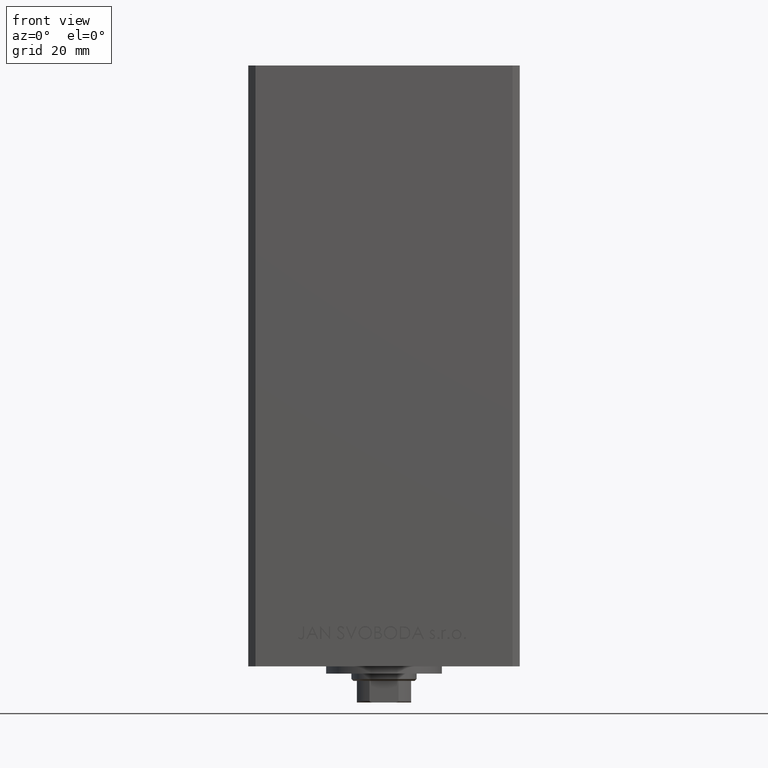
[diagram: clean part render]
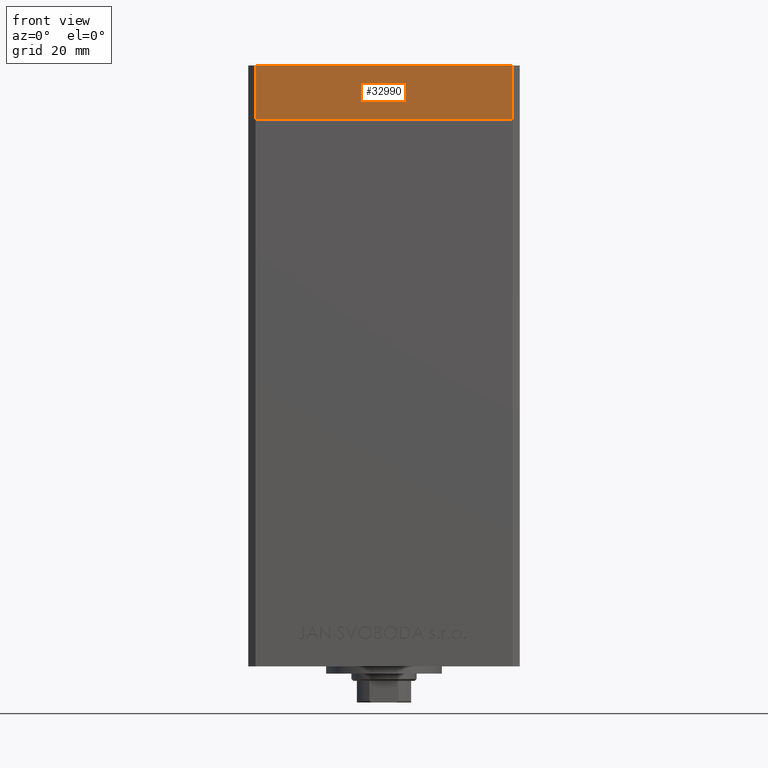
[diagram: same view with one face highlighted and labeled with its STEP entity id]
A machine part, front view. The second image highlights one B-rep face of the part: STEP entity #32990.
In plain terms, the highlighted planar face has unit normal (0, -1, 0).
Its self-contained STEP definition (entity closure, byte-faithful):
#99 = LINE ( 'NONE', #3108, #33473 ) ;
#1776 = LINE ( 'NONE', #20450, #15495 ) ;
#3108 = CARTESIAN_POINT ( 'NONE',  ( -35.49999999999998579, -32.50000000000001421, -15.00000000000000000 ) ) ;
#4098 = CARTESIAN_POINT ( 'NONE',  ( 35.50000000000000711, -32.50000000000000711, -15.00000000000000000 ) ) ;
#4119 = EDGE_CURVE ( 'NONE', #36311, #47659, #99, .T. ) ;
#4718 = CARTESIAN_POINT ( 'NONE',  ( -35.49999999999998579, -32.50000000000001421, -15.00000000000000000 ) ) ;
#5767 = DIRECTION ( 'NONE',  ( 1.000000000000000000, 9.773090005503140331E-17, 0.000000000000000000 ) ) ;
#6721 = EDGE_LOOP ( 'NONE', ( #15475, #18284, #21536, #48891 ) ) ;
#8953 = CARTESIAN_POINT ( 'NONE',  ( 35.50000000000000711, -32.50000000000000711, 0.000000000000000000 ) ) ;
#14755 = DIRECTION ( 'NONE',  ( 1.000000000000000000, 9.773090005503140331E-17, 0.000000000000000000 ) ) ;
#14989 = LINE ( 'NONE', #41408, #29487 ) ;
#15286 = DIRECTION ( 'NONE',  ( 0.000000000000000000, 0.000000000000000000, 1.000000000000000000 ) ) ;
#15475 = ORIENTED_EDGE ( 'NONE', *, *, #17576, .F. ) ;
#15495 = VECTOR ( 'NONE', #5767, 1000.000000000000000 ) ;
#17576 = EDGE_CURVE ( 'NONE', #47659, #34784, #14989, .T. ) ;
#18009 = CARTESIAN_POINT ( 'NONE',  ( 35.50000000000000711, -32.50000000000000711, -15.00000000000000000 ) ) ;
#18284 = ORIENTED_EDGE ( 'NONE', *, *, #4119, .F. ) ;
#18398 = VERTEX_POINT ( 'NONE', #18009 ) ;
#19183 = VECTOR ( 'NONE', #30738, 1000.000000000000000 ) ;
#19894 = DIRECTION ( 'NONE',  ( 9.773090005503140331E-17, -1.000000000000000000, 0.000000000000000000 ) ) ;
#20450 = CARTESIAN_POINT ( 'NONE',  ( -35.49999999999998579, -32.50000000000001421, -15.00000000000000000 ) ) ;
#21536 = ORIENTED_EDGE ( 'NONE', *, *, #32671, .T. ) ;
#23391 = DIRECTION ( 'NONE',  ( 1.000000000000000000, 9.773090005503140331E-17, 0.000000000000000000 ) ) ;
#25850 = AXIS2_PLACEMENT_3D ( 'NONE', #4718, #19894, #23391 ) ;
#27809 = CARTESIAN_POINT ( 'NONE',  ( -35.49999999999998579, -32.50000000000001421, 0.000000000000000000 ) ) ;
#29487 = VECTOR ( 'NONE', #14755, 1000.000000000000000 ) ;
#30381 = PLANE ( 'NONE',  #25850 ) ;
#30738 = DIRECTION ( 'NONE',  ( 0.000000000000000000, 0.000000000000000000, 1.000000000000000000 ) ) ;
#31115 = FACE_OUTER_BOUND ( 'NONE', #6721, .T. ) ;
#32076 = CARTESIAN_POINT ( 'NONE',  ( -35.49999999999998579, -32.50000000000001421, -15.00000000000000000 ) ) ;
#32671 = EDGE_CURVE ( 'NONE', #36311, #18398, #1776, .T. ) ;
#32990 = ADVANCED_FACE ( 'NONE', ( #31115 ), #30381, .T. ) ;
#33473 = VECTOR ( 'NONE', #15286, 1000.000000000000000 ) ;
#34784 = VERTEX_POINT ( 'NONE', #8953 ) ;
#36311 = VERTEX_POINT ( 'NONE', #32076 ) ;
#38463 = LINE ( 'NONE', #4098, #19183 ) ;
#41408 = CARTESIAN_POINT ( 'NONE',  ( -35.49999999999998579, -32.50000000000001421, 0.000000000000000000 ) ) ;
#45592 = EDGE_CURVE ( 'NONE', #18398, #34784, #38463, .T. ) ;
#47659 = VERTEX_POINT ( 'NONE', #27809 ) ;
#48891 = ORIENTED_EDGE ( 'NONE', *, *, #45592, .T. ) ;